MODEL slx_905b135386bb
KIND model
CONFIG InitFcn = clear functions
BLOCK [Reference]  TrueTime Battery  REF=truetime/TrueTime Battery  (lib defined in slx_0362a698a4ec)
  Ports = [1, 1]
  SourceBlock = truetime/TrueTime Battery
  energy = 0.3
BLOCK [Scope] Battery, Actuator
  DataFormat = StructureWithTime
  Decimation = 1
  Grid = on
  LimitDataPoints = off
  MaxDataPoints = 5000
  Ports = [1]
  SampleInput = off
  SampleTime = -1
  SaveName = ScopeData1
  SaveToWorkspace = off
  ShowLegends = off
  TickLabels = OneTimeTick
  TimeRange = 10
  YMax = 0.3
  YMin = 0.175
  ZoomMode = on
BLOCK [Scope] Battery, controller
  DataFormat = StructureWithTime
  Decimation = 1
  Grid = on
  LimitDataPoints = off
  MaxDataPoints = 5000
  Ports = [1]
  SampleInput = off
  SampleTime = -1
  SaveName = ScopeData2
  SaveToWorkspace = off
  ShowLegends = off
  TickLabels = OneTimeTick
  TimeRange = 10
  YMax = 0.3
  YMin = 0.05
  ZoomMode = on
BLOCK [Clock] Clock
BLOCK [Constant] Constant1
  Value = 20
BLOCK [TransferFcn] DC Servo
  Denominator = [1 1 0]
  Numerator = [1000]
BLOCK [Demux] Demux1
  Outputs = 2
  Ports = [1, 2]
BLOCK [Display] Display
  Decimation = 1
  Ports = [1]
BLOCK [From] From1
  CloseFcn = tagdialog Close
  GotoTag = P2
  TagVisibility = global
BLOCK [From] From5
  CloseFcn = tagdialog Close
  GotoTag = P1
  TagVisibility = global
BLOCK [Goto] Goto5
  GotoTag = P2
  TagVisibility = global
BLOCK [Goto] Goto6
  GotoTag = P1
  TagVisibility = global
BLOCK [Mux] Mux
  DisplayOption = bar
  Inputs = 2
  Ports = [2, 1]
BLOCK [Mux] Mux1
  DisplayOption = bar
  Inputs = 2
  Ports = [2, 1]
BLOCK [Mux] Mux2
  DisplayOption = bar
  Inputs = 2
  Ports = [2, 1]
BLOCK [Mux] Mux4
  DisplayOption = bar
  Inputs = 2
  Ports = [2, 1]
BLOCK [Mux] Mux5
  DisplayOption = bar
  Inputs = 2
  Ports = [2, 1]
BLOCK [Reference] Network Code Machine  REF=NCM/Network Code Machine
  Ports = [1, 0, 0, 1]
  SourceBlock = NCM/Network Code Machine
  SourceType = SubSystem
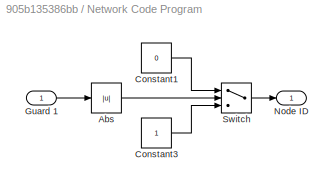
BLOCK [SubSystem] Network Code Program
  FunctionWithSeparateData = off
  MaskHideContents = off
  MinAlgLoopOccurrences = off
  Opaque = off
  Ports = [1, 1]
  PropExecContextOutsideSubsystem = off
  RTWSystemCode = Auto
  RequestExecContextInheritance = off
  Variant = off
BLOCK [Abs] Network Code Program/Abs
  SaturateOnIntegerOverflow = off
BLOCK [Constant] Network Code Program/Constant1
  Value = 0
BLOCK [Constant] Network Code Program/Constant3
BLOCK [Inport] Network Code Program/Guard 1
  IconDisplay = Port number
BLOCK [Outport] Network Code Program/Node ID
  IconDisplay = Port number
BLOCK [Switch] Network Code Program/Switch
  InputSameDT = off
  SaturateOnIntegerOverflow = off
  Threshold = .5
BLOCK [Scope] Network Schedule
  DataFormat = StructureWithTime
  Decimation = 1
  Grid = on
  LimitDataPoints = off
  MaxDataPoints = 5000
  Ports = [1]
  SampleInput = off
  SampleTime = -1
  SaveName = nschedule
  SaveToWorkspace = on
  ShowLegends = off
  TickLabels = OneTimeTick
  TimeRange = 10
  YMax = 2.5
  YMin = 1
  ZoomMode = xonly
BLOCK [Scope] Power Consumption
  DataFormat = StructureWithTime
  Decimation = 1
  Grid = on
  LimitDataPoints = off
  MaxDataPoints = 5000
  Ports = [1]
  SampleInput = off
  SampleTime = -1
  SaveName = ScopeData3
  SaveToWorkspace = off
  ShowLegends = off
  TickLabels = OneTimeTick
  TimeRange = 10
  YMax = 1
  YMin = 0
  ZoomMode = xonly
BLOCK [DiscretePulseGenerator] Pulse Generator
  Period = 0.25
  PhaseDelay = 0.50
  Ports = [0, 1]
  PulseType = Time based
  PulseWidth = 50
BLOCK [Reference] Regulator Node  REF=truetime/TrueTime Kernel  (lib defined in slx_0362a698a4ec)
  Ports = [2, 2]
  SourceBlock = truetime/TrueTime Kernel
  args = []
  battery = on
  clockoffsetdrift = [0 0]
  label = 1: 2
  ninputsoutputs = [1 0]
  ntriggers = 0
  nwnodenbr = 2
  poweroutput = on
  schedoutput = on
  sfun = regulator_init
  trigtype = falling
BLOCK [Scope] Schedule, actuator node
  DataFormat = Array
  Decimation = 1
  Grid = on
  LimitDataPoints = off
  MaxDataPoints = 5000
  Ports = [1]
  SampleInput = off
  SampleTime = -1
  SaveName = ScopeData
  SaveToWorkspace = off
  ShowLegends = off
  TickLabels = on
  TimeRange = 10
  YMax = 6
  YMin = 1
  ZoomMode = xonly
BLOCK [Scope] Schedule, computer node
  DataFormat = StructureWithTime
  Decimation = 1
  Grid = on
  LimitDataPoints = off
  MaxDataPoints = 5000
  Ports = [1]
  SampleInput = off
  SampleTime = -1
  SaveName = schedule
  SaveToWorkspace = on
  ShowLegends = off
  TickLabels = OneTimeTick
  TimeRange = 10
  YMax = 10
  YMin = 1
  ZoomMode = xonly
BLOCK [Reference] Sensor//Actuator Node  REF=truetime/TrueTime Kernel  (lib defined in slx_0362a698a4ec)
  Ports = [2, 3]
  SourceBlock = truetime/TrueTime Kernel
  args = []
  battery = on
  clockoffsetdrift = [0 0]
  label = 1: 1
  ninputsoutputs = [1 1]
  ntriggers = 0
  nwnodenbr = 1
  poweroutput = on
  schedoutput = on
  sfun = actuator_init
  trigtype = falling
BLOCK [Sin] Sine Wave
  Ports = [0, 1]
  SampleTime = 0
BLOCK [Reference] TrueTime Battery  REF=truetime/TrueTime Battery  (lib defined in slx_0362a698a4ec)
  Ports = [1, 1]
  SourceBlock = truetime/TrueTime Battery
  energy = 0.3
BLOCK [Reference] TrueTime Wireless Network  REF=truetime/TrueTime Wireless   (lib defined in slx_0362a698a4ec)
Network
  Ports = [2, 2]
  SourceBlock = truetime/TrueTime Wireless \nNetwork
  SourceType = Wireless Network
  acktimeout = 0.00004
  error_threshold = 0.03
  lossprob = 0
  minsize = 272
  nnodes = 2
  nwnbr = 1
  nwtype = NCM_WIRELESS
  pathloss = 3.5
  poweroutput = on
  rate = 800000
  retrylimit = 5
  scheduleoutput = on
  seed = 0
  threshold = -48
  transpower = 30
  use_pathloss_function = default
BLOCK [Constant] X
  Value = 0
BLOCK [Scope] r, y
  DataFormat = StructureWithTime
  Decimation = 1
  Grid = on
  LimitDataPoints = off
  MaxDataPoints = 5000
  NumInputPorts = 2
  Ports = [2]
  SampleInput = off
  SampleTime = -1
  SaveName = y
  SaveToWorkspace = off
  ShowLegends = off
  TickLabels = OneTimeTick
  TimeRange = 10
  YMax = 1.85596~5
  YMin = -0.717285~-5
  ZoomMode = xonly
BLOCK [DiscretePulseGenerator] reference
  Period = 1.2
  Ports = [0, 1]
  PulseType = Time based
  PulseWidth = 50
ANNOTATION (root): TrueTime 2.0 Wireless Battery-Powered Control System <copyright redacted>
ANNOTATION (root): r
ANNOTATION (root): u
ANNOTATION (root): y
NET  TrueTime Battery:1 -> Battery, Actuator:1, Sensor//Actuator Node:2
LINE Clock:1 -> Display:1
LINE Constant1:1 -> Mux2:2
NET DC Servo:1 -> Mux:1, Sensor//Actuator Node:1
LINE Demux1:1 -> Goto6:1
LINE Demux1:2 -> Goto5:1
LINE From1:1 -> Mux5:2
LINE From5:1 -> Mux4:2
LINE Mux1:1 -> TrueTime Wireless Network:1
LINE Mux2:1 -> TrueTime Wireless Network:2
LINE Mux4:1 ->  TrueTime Battery:1
LINE Mux5:1 -> TrueTime Battery:1
LINE Mux:1 -> r, y:1
LINE Network Code Program/Abs:1 -> Network Code Program/Switch:2
LINE Network Code Program/Constant1:1 -> Network Code Program/Switch:1
LINE Network Code Program/Constant3:1 -> Network Code Program/Switch:3
LINE Network Code Program/Guard 1:1 -> Network Code Program/Abs:1
LINE Network Code Program/Switch:1 -> Network Code Program/Node ID:1
LINE Network Code Program:1 -> Network Code Machine:1
LINE Pulse Generator:1 -> Network Code Machine:trigger
LINE Regulator Node:1 -> Schedule, computer node:1
LINE Regulator Node:2 -> Mux5:1
NET Sensor//Actuator Node:1 -> DC Servo:1, r, y:2
LINE Sensor//Actuator Node:2 -> Schedule, actuator node:1
LINE Sensor//Actuator Node:3 -> Mux4:1
LINE Sine Wave:1 -> Network Code Program:1
NET TrueTime Battery:1 -> Battery, controller:1, Regulator Node:2
LINE TrueTime Wireless Network:1 -> Network Schedule:1
NET TrueTime Wireless Network:2 -> Demux1:1, Power Consumption:1
NET X:1 -> Mux1:1, Mux1:2, Mux2:1
NET reference:1 -> Mux:2, Regulator Node:1
note: NET lines group one-source signal fan-out (src -> all destinations, sorted); 1:1 wires keep LINE
